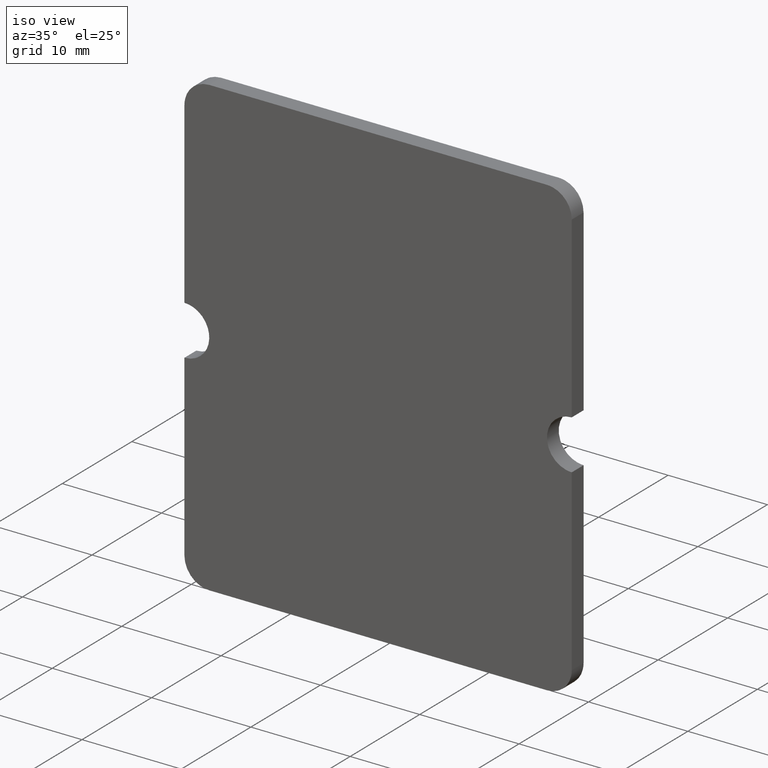
[diagram: clean part render]
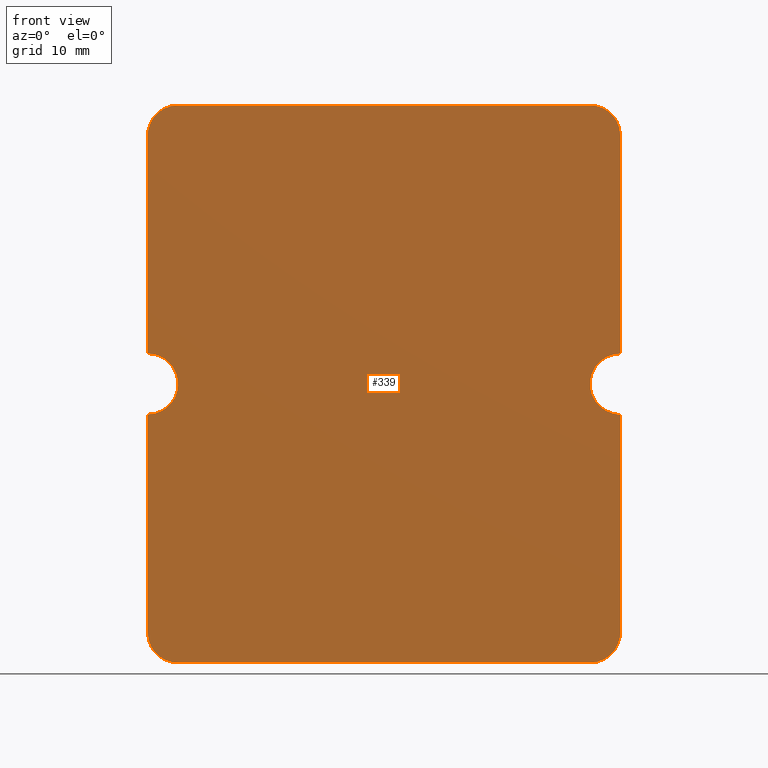
[diagram: tour spotlight — one face highlighted and labeled with its STEP entity id]
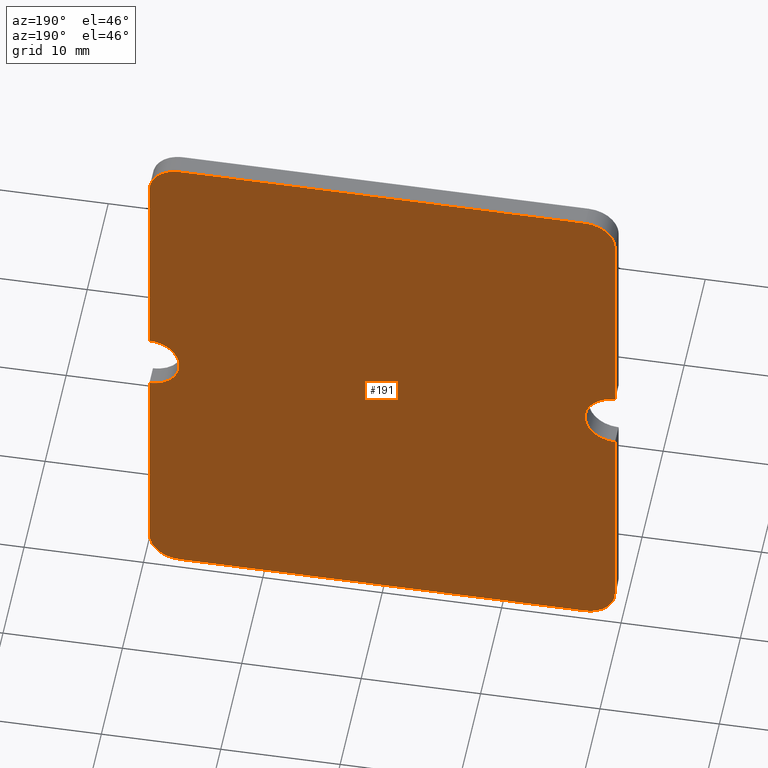
[diagram: tour spotlight — one face highlighted and labeled with its STEP entity id]
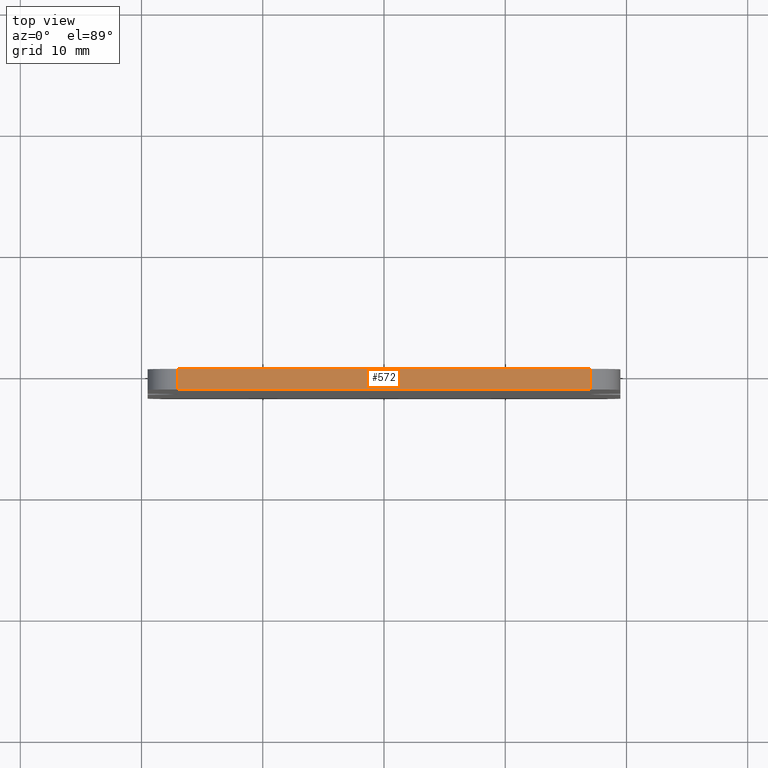
[diagram: tour spotlight — one face highlighted and labeled with its STEP entity id]
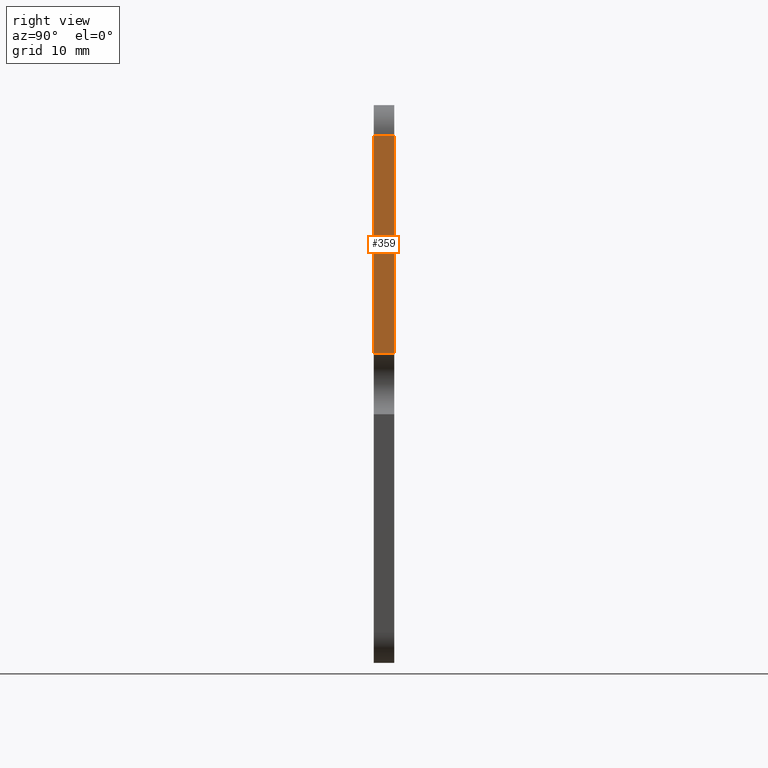
[diagram: tour spotlight — one face highlighted and labeled with its STEP entity id]
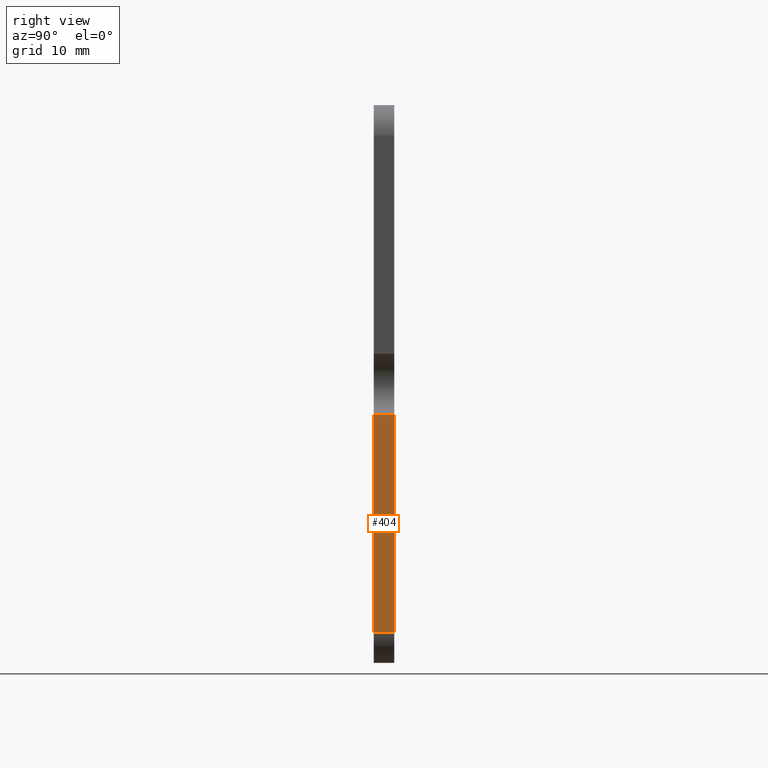
[diagram: tour spotlight — one face highlighted and labeled with its STEP entity id]
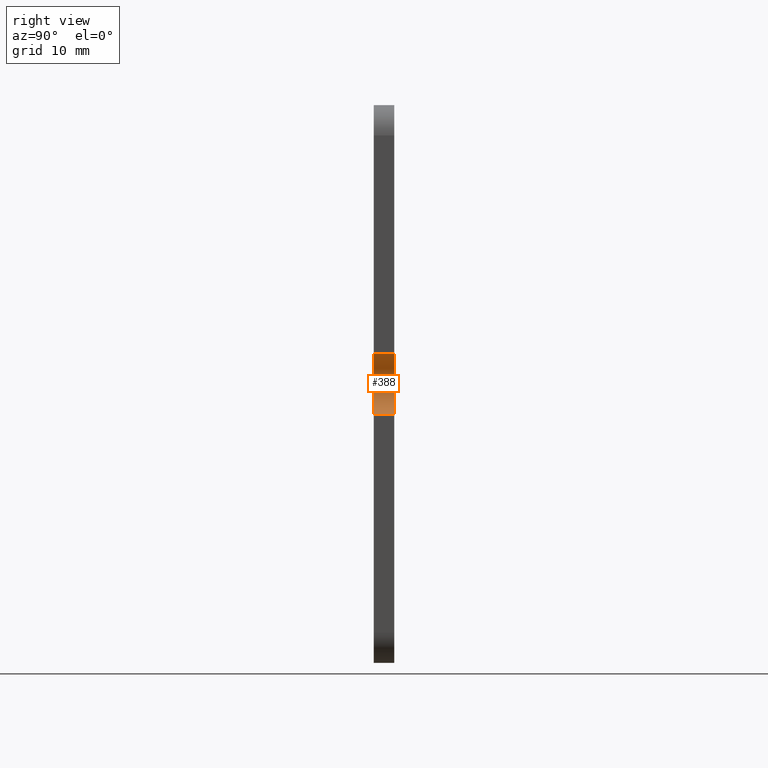
[diagram: tour spotlight — one face highlighted and labeled with its STEP entity id]
A machine part: a face-by-face anatomy tour. The part has 14 B-rep faces; the first image is the clean iso view, then the 6 largest visible faces are spotlighted one at a time (largest first), each with its STEP entity span.

Face 1 — front view, entity #339. In plain terms, the highlighted face is a freeform B-spline surface patch.
Definition (entity closure, byte-faithful):
#192=CARTESIAN_POINT('',(-21.448049824305670,-1.699997000000110,25.297699910843090));
#193=CARTESIAN_POINT('',(21.448048866267929,-1.699997000000110,25.297699910843090));
#194=CARTESIAN_POINT('',(-21.448049824305670,-1.699997000000110,-25.297701144659221));
#195=CARTESIAN_POINT('',(21.448048866267929,-1.699997000000110,-25.297701144659221));
#196=B_SPLINE_SURFACE_WITH_KNOTS('',1,1,((#192,#194),(#193,#195)),.UNSPECIFIED.,.F.,.F.,.U.,(2,2),(2,2),(0.0,42.896098690573602),(0.0,50.595401055502307),.UNSPECIFIED.);
#197=CARTESIAN_POINT('',(19.500000000000000,-1.699997000000120,20.500000000000000));
#198=VERTEX_POINT('',#197);
#199=CARTESIAN_POINT('',(17.0,-1.699997000000120,23.0));
#200=VERTEX_POINT('',#199);
#201=CARTESIAN_POINT('',(19.500000000000000,-1.699997000000120,20.500000000000000));
#202=CARTESIAN_POINT('',(19.500000000000004,-1.699997000000120,22.999999999999993));
#203=CARTESIAN_POINT('',(17.0,-1.699997000000120,23.0));
#211=(BOUNDED_CURVE()B_SPLINE_CURVE(2,(#201,#202,#203),.UNSPECIFIED.,.F.,.U.)CURVE()GEOMETRIC_REPRESENTATION_ITEM()QUASI_UNIFORM_CURVE()RATIONAL_B_SPLINE_CURVE((1.0,0.707106781186548,1.0))REPRESENTATION_ITEM(''));
#212=EDGE_CURVE('',#198,#200,#211,.T.);
#213=ORIENTED_EDGE('',*,*,#212,.T.);
#214=CARTESIAN_POINT('',(-17.0,-1.699997000000120,23.0));
#215=VERTEX_POINT('',#214);
#216=CARTESIAN_POINT('',(17.0,-1.699997000000120,23.0));
#217=CARTESIAN_POINT('',(-17.0,-1.699997000000120,23.0));
#218=QUASI_UNIFORM_CURVE('',1,(#216,#217),.UNSPECIFIED.,.F.,.U.);
#219=EDGE_CURVE('',#200,#215,#218,.T.);
#220=ORIENTED_EDGE('',*,*,#219,.T.);
#221=CARTESIAN_POINT('',(-19.499999999999499,-1.699997000000120,20.500001570796350));
#222=VERTEX_POINT('',#221);
#223=CARTESIAN_POINT('',(-17.0,-1.699997000000120,23.0));
#224=CARTESIAN_POINT('',(-19.499998429204155,-1.699997000000119,23.000000000000011));
#225=CARTESIAN_POINT('',(-19.499999999999510,-1.699997000000120,20.500001570796350));
#233=(BOUNDED_CURVE()B_SPLINE_CURVE(2,(#223,#224,#225),.UNSPECIFIED.,.F.,.U.)CURVE()GEOMETRIC_REPRESENTATION_ITEM()QUASI_UNIFORM_CURVE()RATIONAL_B_SPLINE_CURVE((1.0,0.707107003330662,1.0))REPRESENTATION_ITEM(''));
#234=EDGE_CURVE('',#215,#222,#233,.T.);
#235=ORIENTED_EDGE('',*,*,#234,.T.);
#236=CARTESIAN_POINT('',(-19.500000000000000,-1.699997000000120,2.500000000000000));
#237=VERTEX_POINT('',#236);
#238=CARTESIAN_POINT('',(-19.499999999999499,-1.699997000000120,20.500001570796350));
#239=CARTESIAN_POINT('',(-19.500000000000000,-1.699997000000120,2.500000000000000));
#240=QUASI_UNIFORM_CURVE('',1,(#238,#239),.UNSPECIFIED.,.F.,.U.);
#241=EDGE_CURVE('',#222,#237,#240,.T.);
#242=ORIENTED_EDGE('',*,*,#241,.T.);
#243=CARTESIAN_POINT('',(-19.499999214601850,-1.699997000000120,-2.499999999999875));
#244=VERTEX_POINT('',#243);
#245=CARTESIAN_POINT('',(-19.499999214601850,-1.699997000000120,-2.499999999999877));
#246=CARTESIAN_POINT('',(-16.999999607301028,-1.699997000000119,-2.499999214601853));
#247=CARTESIAN_POINT('',(-17.000000000000028,-1.699997000000120,0.000000392699073));
#248=CARTESIAN_POINT('',(-17.000000392699032,-1.699997000000119,2.500000000000000));
#249=CARTESIAN_POINT('',(-19.500000000000000,-1.699997000000120,2.500000000000000));
#257=(BOUNDED_CURVE()B_SPLINE_CURVE(2,(#245,#246,#247,#248,#249),.UNSPECIFIED.,.F.,.U.)B_SPLINE_CURVE_WITH_KNOTS((3,2,3),(0.0,0.500000000000000,1.0),.UNSPECIFIED.)CURVE()GEOMETRIC_REPRESENTATION_ITEM()RATIONAL_B_SPLINE_CURVE((1.0,0.707106836722581,1.0,0.707106836722581,1.0))REPRESENTATION_ITEM(''));
#258=EDGE_CURVE('',#244,#237,#257,.T.);
#259=ORIENTED_EDGE('',*,*,#258,.F.);
#260=CARTESIAN_POINT('',(-19.500000000000000,-1.699997000000120,-20.500000000000000));
#261=VERTEX_POINT('',#260);
#262=CARTESIAN_POINT('',(-19.499999214601850,-1.699997000000120,-2.499999999999875));
#263=CARTESIAN_POINT('',(-19.500000000000000,-1.699997000000120,-20.500000000000000));
#264=QUASI_UNIFORM_CURVE('',1,(#262,#263),.UNSPECIFIED.,.F.,.U.);
#265=EDGE_CURVE('',#244,#261,#264,.T.);
#266=ORIENTED_EDGE('',*,*,#265,.T.);
#267=CARTESIAN_POINT('',(-16.999998778269550,-1.699997000000120,-22.999999999999702));
#268=VERTEX_POINT('',#267);
#269=CARTESIAN_POINT('',(-19.500000000000000,-1.699997000000120,-20.500000000000000));
#270=CARTESIAN_POINT('',(-19.500000000000007,-1.699997000000120,-21.535534263769321));
#271=CARTESIAN_POINT('',(-18.767766521019379,-1.699997000000120,-22.267767384913260));
#272=CARTESIAN_POINT('',(-18.035533042038750,-1.699997000000120,-23.000000506057201));
#273=CARTESIAN_POINT('',(-16.999998778269550,-1.699997000000120,-22.999999999999702));
#281=(BOUNDED_CURVE()B_SPLINE_CURVE(2,(#269,#270,#271,#272,#273),.UNSPECIFIED.,.F.,.U.)B_SPLINE_CURVE_WITH_KNOTS((3,2,3),(0.0,0.500000000000000,1.0),.UNSPECIFIED.)CURVE()GEOMETRIC_REPRESENTATION_ITEM()RATIONAL_B_SPLINE_CURVE((1.0,0.923879485757680,1.0,0.923879485757680,1.0))REPRESENTATION_ITEM(''));
#282=EDGE_CURVE('',#261,#268,#281,.T.);
#283=ORIENTED_EDGE('',*,*,#282,.T.);
#284=CARTESIAN_POINT('',(17.0,-1.699997000000120,-23.0));
#285=VERTEX_POINT('',#284);
#286=CARTESIAN_POINT('',(-16.999998778269550,-1.699997000000120,-22.999999999999702));
#287=CARTESIAN_POINT('',(17.0,-1.699997000000120,-23.0));
#288=QUASI_UNIFORM_CURVE('',1,(#286,#287),.UNSPECIFIED.,.F.,.U.);
#289=EDGE_CURVE('',#268,#285,#288,.T.);
#290=ORIENTED_EDGE('',*,*,#289,.T.);
#291=CARTESIAN_POINT('',(19.500000000000000,-1.699997000000120,-20.500000000000000));
#292=VERTEX_POINT('',#291);
#293=CARTESIAN_POINT('',(17.0,-1.699997000000120,-23.0));
#294=CARTESIAN_POINT('',(19.500000000000004,-1.699997000000120,-22.999999999999993));
#295=CARTESIAN_POINT('',(19.500000000000000,-1.699997000000120,-20.500000000000000));
#303=(BOUNDED_CURVE()B_SPLINE_CURVE(2,(#293,#294,#295),.UNSPECIFIED.,.F.,.U.)CURVE()GEOMETRIC_REPRESENTATION_ITEM()QUASI_UNIFORM_CURVE()RATIONAL_B_SPLINE_CURVE((1.0,0.707106781186548,1.0))REPRESENTATION_ITEM(''));
#304=EDGE_CURVE('',#285,#292,#303,.T.);
#305=ORIENTED_EDGE('',*,*,#304,.T.);
#306=CARTESIAN_POINT('',(19.500000000000000,-1.699997000000120,-2.500000000000000));
#307=VERTEX_POINT('',#306);
#308=CARTESIAN_POINT('',(19.500000000000000,-1.699997000000120,-20.500000000000000));
#309=CARTESIAN_POINT('',(19.500000000000000,-1.699997000000120,-2.500000000000000));
#310=QUASI_UNIFORM_CURVE('',1,(#308,#309),.UNSPECIFIED.,.F.,.U.);
#311=EDGE_CURVE('',#292,#307,#310,.T.);
#312=ORIENTED_EDGE('',*,*,#311,.T.);
#313=CARTESIAN_POINT('',(19.500000785398150,-1.699997000000120,2.499999999999875));
#314=VERTEX_POINT('',#313);
#315=CARTESIAN_POINT('',(19.500000785398150,-1.699997000000120,2.499999999999877));
#316=CARTESIAN_POINT('',(18.056624937891236,-1.699997000000119,2.500000453449764));
#317=CARTESIAN_POINT('',(17.334936752338329,-1.699997000000120,1.250000453449805));
#318=CARTESIAN_POINT('',(16.613248566785437,-1.699997000000119,0.000000453449847));
#319=CARTESIAN_POINT('',(17.334936359639219,-1.699997000000120,-1.249999773275076));
#320=CARTESIAN_POINT('',(18.056624152493015,-1.699997000000119,-2.500000000000000));
#321=CARTESIAN_POINT('',(19.500000000000000,-1.699997000000120,-2.500000000000000));
#329=(BOUNDED_CURVE()B_SPLINE_CURVE(2,(#315,#316,#317,#318,#319,#320,#321),.UNSPECIFIED.,.F.,.U.)B_SPLINE_CURVE_WITH_KNOTS((3,2,2,3),(0.0,0.333333333333333,0.666666666666667,1.0),.UNSPECIFIED.)CURVE()GEOMETRIC_REPRESENTATION_ITEM()RATIONAL_B_SPLINE_CURVE((1.0,0.866025377604499,1.0,0.866025377604499,1.0,0.866025377604499,1.0))REPRESENTATION_ITEM(''));
#330=EDGE_CURVE('',#314,#307,#329,.T.);
#331=ORIENTED_EDGE('',*,*,#330,.F.);
#332=CARTESIAN_POINT('',(19.500000785398150,-1.699997000000120,2.499999999999875));
#333=CARTESIAN_POINT('',(19.500000000000000,-1.699997000000120,20.500000000000000));
#334=QUASI_UNIFORM_CURVE('',1,(#332,#333),.UNSPECIFIED.,.F.,.U.);
#335=EDGE_CURVE('',#314,#198,#334,.T.);
#336=ORIENTED_EDGE('',*,*,#335,.T.);
#337=EDGE_LOOP('',(#213,#220,#235,#242,#259,#266,#283,#290,#305,#312,#331,#336));
#338=FACE_OUTER_BOUND('',#337,.T.);
#339=ADVANCED_FACE('',(#338),#196,.F.);

Face 2 — auxiliary view, entity #191. In plain terms, the highlighted face is a freeform B-spline surface patch.
Definition (entity closure, byte-faithful):
#44=CARTESIAN_POINT('',(-21.448049824305670,0.0,25.297699910843090));
#45=CARTESIAN_POINT('',(21.448048866267929,0.0,25.297699910843090));
#46=CARTESIAN_POINT('',(-21.448049824305670,0.0,-25.297701144659221));
#47=CARTESIAN_POINT('',(21.448048866267929,0.0,-25.297701144659221));
#48=B_SPLINE_SURFACE_WITH_KNOTS('',1,1,((#44,#46),(#45,#47)),.UNSPECIFIED.,.F.,.F.,.U.,(2,2),(2,2),(0.0,42.896098690573602),(0.0,50.595401055502307),.UNSPECIFIED.);
#49=CARTESIAN_POINT('',(19.500000000000000,0.0,20.500000000000000));
#50=VERTEX_POINT('',#49);
#51=CARTESIAN_POINT('',(17.0,0.0,23.0));
#52=VERTEX_POINT('',#51);
#53=CARTESIAN_POINT('',(19.500000000000000,0.0,20.500000000000000));
#54=CARTESIAN_POINT('',(19.500000000000004,0.0,22.999999999999993));
#55=CARTESIAN_POINT('',(17.0,0.0,23.0));
#63=(BOUNDED_CURVE()B_SPLINE_CURVE(2,(#53,#54,#55),.UNSPECIFIED.,.F.,.U.)CURVE()GEOMETRIC_REPRESENTATION_ITEM()QUASI_UNIFORM_CURVE()RATIONAL_B_SPLINE_CURVE((1.0,0.707106781186548,1.0))REPRESENTATION_ITEM(''));
#64=EDGE_CURVE('',#50,#52,#63,.T.);
#65=ORIENTED_EDGE('',*,*,#64,.F.);
#66=CARTESIAN_POINT('',(19.500000785398150,0.0,2.499999999999875));
#67=VERTEX_POINT('',#66);
#68=CARTESIAN_POINT('',(19.500000785398150,0.0,2.499999999999875));
#69=CARTESIAN_POINT('',(19.500000000000000,0.0,20.500000000000000));
#70=QUASI_UNIFORM_CURVE('',1,(#68,#69),.UNSPECIFIED.,.F.,.U.);
#71=EDGE_CURVE('',#67,#50,#70,.T.);
#72=ORIENTED_EDGE('',*,*,#71,.F.);
#73=CARTESIAN_POINT('',(19.500000000000000,0.0,-2.500000000000000));
#74=VERTEX_POINT('',#73);
#75=CARTESIAN_POINT('',(19.500000785398150,0.0,2.499999999999877));
#76=CARTESIAN_POINT('',(18.056624937891236,0.0,2.500000453449764));
#77=CARTESIAN_POINT('',(17.334936752338329,0.0,1.250000453449805));
#78=CARTESIAN_POINT('',(16.613248566785437,0.0,0.000000453449847));
#79=CARTESIAN_POINT('',(17.334936359639219,0.0,-1.249999773275076));
#80=CARTESIAN_POINT('',(18.056624152493015,0.0,-2.500000000000000));
#81=CARTESIAN_POINT('',(19.500000000000000,0.0,-2.500000000000000));
#89=(BOUNDED_CURVE()B_SPLINE_CURVE(2,(#75,#76,#77,#78,#79,#80,#81),.UNSPECIFIED.,.F.,.U.)B_SPLINE_CURVE_WITH_KNOTS((3,2,2,3),(0.0,0.333333333333333,0.666666666666667,1.0),.UNSPECIFIED.)CURVE()GEOMETRIC_REPRESENTATION_ITEM()RATIONAL_B_SPLINE_CURVE((1.0,0.866025377604499,1.0,0.866025377604499,1.0,0.866025377604499,1.0))REPRESENTATION_ITEM(''));
#90=EDGE_CURVE('',#67,#74,#89,.T.);
#91=ORIENTED_EDGE('',*,*,#90,.T.);
#92=CARTESIAN_POINT('',(19.500000000000000,0.0,-20.500000000000000));
#93=VERTEX_POINT('',#92);
#94=CARTESIAN_POINT('',(19.500000000000000,0.0,-20.500000000000000));
#95=CARTESIAN_POINT('',(19.500000000000000,0.0,-2.500000000000000));
#96=QUASI_UNIFORM_CURVE('',1,(#94,#95),.UNSPECIFIED.,.F.,.U.);
#97=EDGE_CURVE('',#93,#74,#96,.T.);
#98=ORIENTED_EDGE('',*,*,#97,.F.);
#99=CARTESIAN_POINT('',(17.0,0.0,-23.0));
#100=VERTEX_POINT('',#99);
#101=CARTESIAN_POINT('',(17.0,0.0,-23.0));
#102=CARTESIAN_POINT('',(19.500000000000004,0.0,-22.999999999999993));
#103=CARTESIAN_POINT('',(19.500000000000000,0.0,-20.500000000000000));
#111=(BOUNDED_CURVE()B_SPLINE_CURVE(2,(#101,#102,#103),.UNSPECIFIED.,.F.,.U.)CURVE()GEOMETRIC_REPRESENTATION_ITEM()QUASI_UNIFORM_CURVE()RATIONAL_B_SPLINE_CURVE((1.0,0.707106781186548,1.0))REPRESENTATION_ITEM(''));
#112=EDGE_CURVE('',#100,#93,#111,.T.);
#113=ORIENTED_EDGE('',*,*,#112,.F.);
#114=CARTESIAN_POINT('',(-16.999998778269550,0.0,-22.999999999999702));
#115=VERTEX_POINT('',#114);
#116=CARTESIAN_POINT('',(-16.999998778269550,0.0,-22.999999999999702));
#117=CARTESIAN_POINT('',(17.0,0.0,-23.0));
#118=QUASI_UNIFORM_CURVE('',1,(#116,#117),.UNSPECIFIED.,.F.,.U.);
#119=EDGE_CURVE('',#115,#100,#118,.T.);
#120=ORIENTED_EDGE('',*,*,#119,.F.);
#121=CARTESIAN_POINT('',(-19.500000000000000,0.0,-20.500000000000000));
#122=VERTEX_POINT('',#121);
#123=CARTESIAN_POINT('',(-19.500000000000000,0.0,-20.500000000000000));
#124=CARTESIAN_POINT('',(-19.500000000000007,0.0,-21.535534263769321));
#125=CARTESIAN_POINT('',(-18.767766521019379,0.0,-22.267767384913260));
#126=CARTESIAN_POINT('',(-18.035533042038750,0.0,-23.000000506057201));
#127=CARTESIAN_POINT('',(-16.999998778269550,0.0,-22.999999999999702));
#135=(BOUNDED_CURVE()B_SPLINE_CURVE(2,(#123,#124,#125,#126,#127),.UNSPECIFIED.,.F.,.U.)B_SPLINE_CURVE_WITH_KNOTS((3,2,3),(0.0,0.500000000000000,1.0),.UNSPECIFIED.)CURVE()GEOMETRIC_REPRESENTATION_ITEM()RATIONAL_B_SPLINE_CURVE((1.0,0.923879485757680,1.0,0.923879485757680,1.0))REPRESENTATION_ITEM(''));
#136=EDGE_CURVE('',#122,#115,#135,.T.);
#137=ORIENTED_EDGE('',*,*,#136,.F.);
#138=CARTESIAN_POINT('',(-19.499999214601850,0.0,-2.499999999999875));
#139=VERTEX_POINT('',#138);
#140=CARTESIAN_POINT('',(-19.499999214601850,0.0,-2.499999999999875));
#141=CARTESIAN_POINT('',(-19.500000000000000,0.0,-20.500000000000000));
#142=QUASI_UNIFORM_CURVE('',1,(#140,#141),.UNSPECIFIED.,.F.,.U.);
#143=EDGE_CURVE('',#139,#122,#142,.T.);
#144=ORIENTED_EDGE('',*,*,#143,.F.);
#145=CARTESIAN_POINT('',(-19.500000000000000,0.0,2.500000000000000));
#146=VERTEX_POINT('',#145);
#147=CARTESIAN_POINT('',(-19.499999214601850,0.0,-2.499999999999877));
#148=CARTESIAN_POINT('',(-16.999999607301028,0.0,-2.499999214601853));
#149=CARTESIAN_POINT('',(-17.000000000000028,0.0,0.000000392699073));
#150=CARTESIAN_POINT('',(-17.000000392699032,0.0,2.500000000000000));
#151=CARTESIAN_POINT('',(-19.500000000000000,0.0,2.500000000000000));
#159=(BOUNDED_CURVE()B_SPLINE_CURVE(2,(#147,#148,#149,#150,#151),.UNSPECIFIED.,.F.,.U.)B_SPLINE_CURVE_WITH_KNOTS((3,2,3),(0.0,0.500000000000000,1.0),.UNSPECIFIED.)CURVE()GEOMETRIC_REPRESENTATION_ITEM()RATIONAL_B_SPLINE_CURVE((1.0,0.707106836722581,1.0,0.707106836722581,1.0))REPRESENTATION_ITEM(''));
#160=EDGE_CURVE('',#139,#146,#159,.T.);
#161=ORIENTED_EDGE('',*,*,#160,.T.);
#162=CARTESIAN_POINT('',(-19.499999999999499,0.0,20.500001570796350));
#163=VERTEX_POINT('',#162);
#164=CARTESIAN_POINT('',(-19.499999999999499,0.0,20.500001570796350));
#165=CARTESIAN_POINT('',(-19.500000000000000,0.0,2.500000000000000));
#166=QUASI_UNIFORM_CURVE('',1,(#164,#165),.UNSPECIFIED.,.F.,.U.);
#167=EDGE_CURVE('',#163,#146,#166,.T.);
#168=ORIENTED_EDGE('',*,*,#167,.F.);
#169=CARTESIAN_POINT('',(-17.0,0.0,23.0));
#170=VERTEX_POINT('',#169);
#171=CARTESIAN_POINT('',(-17.0,0.0,23.0));
#172=CARTESIAN_POINT('',(-19.499998429204155,0.0,23.000000000000011));
#173=CARTESIAN_POINT('',(-19.499999999999510,0.0,20.500001570796350));
#181=(BOUNDED_CURVE()B_SPLINE_CURVE(2,(#171,#172,#173),.UNSPECIFIED.,.F.,.U.)CURVE()GEOMETRIC_REPRESENTATION_ITEM()QUASI_UNIFORM_CURVE()RATIONAL_B_SPLINE_CURVE((1.0,0.707107003330662,1.0))REPRESENTATION_ITEM(''));
#182=EDGE_CURVE('',#170,#163,#181,.T.);
#183=ORIENTED_EDGE('',*,*,#182,.F.);
#184=CARTESIAN_POINT('',(17.0,0.0,23.0));
#185=CARTESIAN_POINT('',(-17.0,0.0,23.0));
#186=QUASI_UNIFORM_CURVE('',1,(#184,#185),.UNSPECIFIED.,.F.,.U.);
#187=EDGE_CURVE('',#52,#170,#186,.T.);
#188=ORIENTED_EDGE('',*,*,#187,.F.);
#189=EDGE_LOOP('',(#65,#72,#91,#98,#113,#120,#137,#144,#161,#168,#183,#188));
#190=FACE_OUTER_BOUND('',#189,.T.);
#191=ADVANCED_FACE('',(#190),#48,.T.);

Face 3 — top view, entity #572. In plain terms, the highlighted face is a freeform B-spline surface patch.
Definition (entity closure, byte-faithful):
#51=CARTESIAN_POINT('',(17.0,0.0,23.0));
#52=VERTEX_POINT('',#51);
#169=CARTESIAN_POINT('',(-17.0,0.0,23.0));
#170=VERTEX_POINT('',#169);
#184=CARTESIAN_POINT('',(17.0,0.0,23.0));
#185=CARTESIAN_POINT('',(-17.0,0.0,23.0));
#186=QUASI_UNIFORM_CURVE('',1,(#184,#185),.UNSPECIFIED.,.F.,.U.);
#187=EDGE_CURVE('',#52,#170,#186,.T.);
#199=CARTESIAN_POINT('',(17.0,-1.699997000000120,23.0));
#200=VERTEX_POINT('',#199);
#214=CARTESIAN_POINT('',(-17.0,-1.699997000000120,23.0));
#215=VERTEX_POINT('',#214);
#216=CARTESIAN_POINT('',(17.0,-1.699997000000120,23.0));
#217=CARTESIAN_POINT('',(-17.0,-1.699997000000120,23.0));
#218=QUASI_UNIFORM_CURVE('',1,(#216,#217),.UNSPECIFIED.,.F.,.U.);
#219=EDGE_CURVE('',#200,#215,#218,.T.);
#549=CARTESIAN_POINT('',(-17.0,-1.699997000000120,23.0));
#550=CARTESIAN_POINT('',(-17.0,0.0,23.0));
#551=QUASI_UNIFORM_CURVE('',1,(#549,#550),.UNSPECIFIED.,.F.,.U.);
#552=EDGE_CURVE('',#215,#170,#551,.T.);
#557=CARTESIAN_POINT('',(18.698299934101399,-1.784911798980136,23.0));
#558=CARTESIAN_POINT('',(-18.698300846052469,-1.784911798980136,23.0));
#559=CARTESIAN_POINT('',(18.698299934101399,0.084914890174961,23.0));
#560=CARTESIAN_POINT('',(-18.698300846052469,0.084914890174961,23.0));
#561=B_SPLINE_SURFACE_WITH_KNOTS('',1,1,((#557,#559),(#558,#560)),.UNSPECIFIED.,.F.,.F.,.U.,(2,2),(2,2),(0.0,37.396600780153868),(0.0,1.869826689155097),.UNSPECIFIED.);
#562=ORIENTED_EDGE('',*,*,#187,.T.);
#563=ORIENTED_EDGE('',*,*,#552,.F.);
#564=ORIENTED_EDGE('',*,*,#219,.F.);
#565=CARTESIAN_POINT('',(17.0,-1.699997000000120,23.0));
#566=CARTESIAN_POINT('',(17.0,0.0,23.0));
#567=QUASI_UNIFORM_CURVE('',1,(#565,#566),.UNSPECIFIED.,.F.,.U.);
#568=EDGE_CURVE('',#200,#52,#567,.T.);
#569=ORIENTED_EDGE('',*,*,#568,.T.);
#570=EDGE_LOOP('',(#562,#563,#564,#569));
#571=FACE_OUTER_BOUND('',#570,.T.);
#572=ADVANCED_FACE('',(#571),#561,.F.);

Face 4 — right view, entity #359. In plain terms, the highlighted face is a freeform B-spline surface patch.
Definition (entity closure, byte-faithful):
#49=CARTESIAN_POINT('',(19.500000000000000,0.0,20.500000000000000));
#50=VERTEX_POINT('',#49);
#66=CARTESIAN_POINT('',(19.500000785398150,0.0,2.499999999999875));
#67=VERTEX_POINT('',#66);
#68=CARTESIAN_POINT('',(19.500000785398150,0.0,2.499999999999875));
#69=CARTESIAN_POINT('',(19.500000000000000,0.0,20.500000000000000));
#70=QUASI_UNIFORM_CURVE('',1,(#68,#69),.UNSPECIFIED.,.F.,.U.);
#71=EDGE_CURVE('',#67,#50,#70,.T.);
#197=CARTESIAN_POINT('',(19.500000000000000,-1.699997000000120,20.500000000000000));
#198=VERTEX_POINT('',#197);
#313=CARTESIAN_POINT('',(19.500000785398150,-1.699997000000120,2.499999999999875));
#314=VERTEX_POINT('',#313);
#332=CARTESIAN_POINT('',(19.500000785398150,-1.699997000000120,2.499999999999875));
#333=CARTESIAN_POINT('',(19.500000000000000,-1.699997000000120,20.500000000000000));
#334=QUASI_UNIFORM_CURVE('',1,(#332,#333),.UNSPECIFIED.,.F.,.U.);
#335=EDGE_CURVE('',#314,#198,#334,.T.);
#340=CARTESIAN_POINT('',(19.500000000000000,-1.784911798980136,1.600900034887363));
#341=CARTESIAN_POINT('',(19.500000000000000,-1.784911798980136,21.399100447910140));
#342=CARTESIAN_POINT('',(19.500000000000000,0.084914890174961,1.600900034887363));
#343=CARTESIAN_POINT('',(19.500000000000000,0.084914890174961,21.399100447910140));
#344=B_SPLINE_SURFACE_WITH_KNOTS('',1,1,((#340,#342),(#341,#343)),.UNSPECIFIED.,.F.,.F.,.U.,(2,2),(2,2),(0.0,19.798200413022780),(0.0,1.869826689155097),.UNSPECIFIED.);
#345=ORIENTED_EDGE('',*,*,#71,.T.);
#346=CARTESIAN_POINT('',(19.500000000000000,-1.699997000000120,20.500000000000000));
#347=CARTESIAN_POINT('',(19.500000000000000,0.0,20.500000000000000));
#348=QUASI_UNIFORM_CURVE('',1,(#346,#347),.UNSPECIFIED.,.F.,.U.);
#349=EDGE_CURVE('',#198,#50,#348,.T.);
#350=ORIENTED_EDGE('',*,*,#349,.F.);
#351=ORIENTED_EDGE('',*,*,#335,.F.);
#352=CARTESIAN_POINT('',(19.500000785398150,-1.699997000000120,2.499999999999875));
#353=CARTESIAN_POINT('',(19.500000785398150,0.0,2.499999999999875));
#354=QUASI_UNIFORM_CURVE('',1,(#352,#353),.UNSPECIFIED.,.F.,.U.);
#355=EDGE_CURVE('',#314,#67,#354,.T.);
#356=ORIENTED_EDGE('',*,*,#355,.T.);
#357=EDGE_LOOP('',(#345,#350,#351,#356));
#358=FACE_OUTER_BOUND('',#357,.T.);
#359=ADVANCED_FACE('',(#358),#344,.F.);

Face 5 — right view, entity #404. In plain terms, the highlighted face is a freeform B-spline surface patch.
Definition (entity closure, byte-faithful):
#73=CARTESIAN_POINT('',(19.500000000000000,0.0,-2.500000000000000));
#74=VERTEX_POINT('',#73);
#92=CARTESIAN_POINT('',(19.500000000000000,0.0,-20.500000000000000));
#93=VERTEX_POINT('',#92);
#94=CARTESIAN_POINT('',(19.500000000000000,0.0,-20.500000000000000));
#95=CARTESIAN_POINT('',(19.500000000000000,0.0,-2.500000000000000));
#96=QUASI_UNIFORM_CURVE('',1,(#94,#95),.UNSPECIFIED.,.F.,.U.);
#97=EDGE_CURVE('',#93,#74,#96,.T.);
#291=CARTESIAN_POINT('',(19.500000000000000,-1.699997000000120,-20.500000000000000));
#292=VERTEX_POINT('',#291);
#306=CARTESIAN_POINT('',(19.500000000000000,-1.699997000000120,-2.500000000000000));
#307=VERTEX_POINT('',#306);
#308=CARTESIAN_POINT('',(19.500000000000000,-1.699997000000120,-20.500000000000000));
#309=CARTESIAN_POINT('',(19.500000000000000,-1.699997000000120,-2.500000000000000));
#310=QUASI_UNIFORM_CURVE('',1,(#308,#309),.UNSPECIFIED.,.F.,.U.);
#311=EDGE_CURVE('',#292,#307,#310,.T.);
#381=CARTESIAN_POINT('',(19.500000000000000,-1.699997000000120,-2.500000000000000));
#382=CARTESIAN_POINT('',(19.500000000000000,0.0,-2.500000000000000));
#383=QUASI_UNIFORM_CURVE('',1,(#381,#382),.UNSPECIFIED.,.F.,.U.);
#384=EDGE_CURVE('',#307,#74,#383,.T.);
#389=CARTESIAN_POINT('',(19.500000000000000,-1.784911798980136,-21.399099965112509));
#390=CARTESIAN_POINT('',(19.500000000000000,-1.784911798980136,-1.600899552089871));
#391=CARTESIAN_POINT('',(19.500000000000000,0.084914890174961,-21.399099965112509));
#392=CARTESIAN_POINT('',(19.500000000000000,0.084914890174961,-1.600899552089871));
#393=B_SPLINE_SURFACE_WITH_KNOTS('',1,1,((#389,#391),(#390,#392)),.UNSPECIFIED.,.F.,.F.,.U.,(2,2),(2,2),(0.0,19.798200413022641),(0.0,1.869826689155097),.UNSPECIFIED.);
#394=ORIENTED_EDGE('',*,*,#97,.T.);
#395=ORIENTED_EDGE('',*,*,#384,.F.);
#396=ORIENTED_EDGE('',*,*,#311,.F.);
#397=CARTESIAN_POINT('',(19.500000000000000,-1.699997000000120,-20.500000000000000));
#398=CARTESIAN_POINT('',(19.500000000000000,0.0,-20.500000000000000));
#399=QUASI_UNIFORM_CURVE('',1,(#397,#398),.UNSPECIFIED.,.F.,.U.);
#400=EDGE_CURVE('',#292,#93,#399,.T.);
#401=ORIENTED_EDGE('',*,*,#400,.T.);
#402=EDGE_LOOP('',(#394,#395,#396,#401));
#403=FACE_OUTER_BOUND('',#402,.T.);
#404=ADVANCED_FACE('',(#403),#393,.F.);

Face 6 — right view, entity #388. In plain terms, the highlighted face is a freeform B-spline surface patch.
Definition (entity closure, byte-faithful):
#66=CARTESIAN_POINT('',(19.500000785398150,0.0,2.499999999999875));
#67=VERTEX_POINT('',#66);
#73=CARTESIAN_POINT('',(19.500000000000000,0.0,-2.500000000000000));
#74=VERTEX_POINT('',#73);
#75=CARTESIAN_POINT('',(19.500000785398150,0.0,2.499999999999877));
#76=CARTESIAN_POINT('',(18.056624937891236,0.0,2.500000453449764));
#77=CARTESIAN_POINT('',(17.334936752338329,0.0,1.250000453449805));
#78=CARTESIAN_POINT('',(16.613248566785437,0.0,0.000000453449847));
#79=CARTESIAN_POINT('',(17.334936359639219,0.0,-1.249999773275076));
#80=CARTESIAN_POINT('',(18.056624152493015,0.0,-2.500000000000000));
#81=CARTESIAN_POINT('',(19.500000000000000,0.0,-2.500000000000000));
#89=(BOUNDED_CURVE()B_SPLINE_CURVE(2,(#75,#76,#77,#78,#79,#80,#81),.UNSPECIFIED.,.F.,.U.)B_SPLINE_CURVE_WITH_KNOTS((3,2,2,3),(0.0,0.333333333333333,0.666666666666667,1.0),.UNSPECIFIED.)CURVE()GEOMETRIC_REPRESENTATION_ITEM()RATIONAL_B_SPLINE_CURVE((1.0,0.866025377604499,1.0,0.866025377604499,1.0,0.866025377604499,1.0))REPRESENTATION_ITEM(''));
#90=EDGE_CURVE('',#67,#74,#89,.T.);
#306=CARTESIAN_POINT('',(19.500000000000000,-1.699997000000120,-2.500000000000000));
#307=VERTEX_POINT('',#306);
#313=CARTESIAN_POINT('',(19.500000785398150,-1.699997000000120,2.499999999999875));
#314=VERTEX_POINT('',#313);
#315=CARTESIAN_POINT('',(19.500000785398150,-1.699997000000120,2.499999999999877));
#316=CARTESIAN_POINT('',(18.056624937891236,-1.699997000000119,2.500000453449764));
#317=CARTESIAN_POINT('',(17.334936752338329,-1.699997000000120,1.250000453449805));
#318=CARTESIAN_POINT('',(16.613248566785437,-1.699997000000119,0.000000453449847));
#319=CARTESIAN_POINT('',(17.334936359639219,-1.699997000000120,-1.249999773275076));
#320=CARTESIAN_POINT('',(18.056624152493015,-1.699997000000119,-2.500000000000000));
#321=CARTESIAN_POINT('',(19.500000000000000,-1.699997000000120,-2.500000000000000));
#329=(BOUNDED_CURVE()B_SPLINE_CURVE(2,(#315,#316,#317,#318,#319,#320,#321),.UNSPECIFIED.,.F.,.U.)B_SPLINE_CURVE_WITH_KNOTS((3,2,2,3),(0.0,0.333333333333333,0.666666666666667,1.0),.UNSPECIFIED.)CURVE()GEOMETRIC_REPRESENTATION_ITEM()RATIONAL_B_SPLINE_CURVE((1.0,0.866025377604499,1.0,0.866025377604499,1.0,0.866025377604499,1.0))REPRESENTATION_ITEM(''));
#330=EDGE_CURVE('',#314,#307,#329,.T.);
#352=CARTESIAN_POINT('',(19.500000785398150,-1.699997000000120,2.499999999999875));
#353=CARTESIAN_POINT('',(19.500000785398150,0.0,2.499999999999875));
#354=QUASI_UNIFORM_CURVE('',1,(#352,#353),.UNSPECIFIED.,.F.,.U.);
#355=EDGE_CURVE('',#314,#67,#354,.T.);
#360=CARTESIAN_POINT('',(19.609048468413341,-1.742496925000123,2.497620553954643));
#361=CARTESIAN_POINT('',(19.609048468413341,0.043562423125003,2.497620553954643));
#362=CARTESIAN_POINT('',(16.953999626036698,-1.742496925000123,2.613542489880956));
#363=CARTESIAN_POINT('',(16.953999626036698,0.043562423125003,2.613542489880956));
#364=CARTESIAN_POINT('',(17.000380762109032,-1.742496925000123,-0.043631016093213));
#365=CARTESIAN_POINT('',(17.000380762109032,0.043562423125003,-0.043631016093213));
#366=CARTESIAN_POINT('',(17.046761898181348,-1.742496925000123,-2.700804522067380));
#367=CARTESIAN_POINT('',(17.046761898181348,0.043562423125003,-2.700804522067380));
#368=CARTESIAN_POINT('',(19.696147739319620,-1.742496925000123,-2.492293334332818));
#369=CARTESIAN_POINT('',(19.696147739319620,0.043562423125003,-2.492293334332818));
#377=(BOUNDED_SURFACE()B_SPLINE_SURFACE(1,2,((#360,#362,#364,#366,#368),(#361,#363,#365,#367,#369)),.UNSPECIFIED.,.F.,.F.,.U.)B_SPLINE_SURFACE_WITH_KNOTS((2,2),(3,2,3),(0.0,1.0),(0.0,4.322206989172973,8.644413978345947),.UNSPECIFIED.)GEOMETRIC_REPRESENTATION_ITEM()RATIONAL_B_SPLINE_SURFACE(((1.0,0.685182990326359,1.0,0.685182990326359,1.0),(1.0,0.685182990326359,1.0,0.685182990326359,1.0)))REPRESENTATION_ITEM('')SURFACE());
#378=ORIENTED_EDGE('',*,*,#90,.F.);
#379=ORIENTED_EDGE('',*,*,#355,.F.);
#380=ORIENTED_EDGE('',*,*,#330,.T.);
#381=CARTESIAN_POINT('',(19.500000000000000,-1.699997000000120,-2.500000000000000));
#382=CARTESIAN_POINT('',(19.500000000000000,0.0,-2.500000000000000));
#383=QUASI_UNIFORM_CURVE('',1,(#381,#382),.UNSPECIFIED.,.F.,.U.);
#384=EDGE_CURVE('',#307,#74,#383,.T.);
#385=ORIENTED_EDGE('',*,*,#384,.T.);
#386=EDGE_LOOP('',(#378,#379,#380,#385));
#387=FACE_OUTER_BOUND('',#386,.T.);
#388=ADVANCED_FACE('',(#387),#377,.F.);